MODEL slx_c85449633ca2
KIND model
BLOCK [Inport] ActualStateEstimate
  IconDisplay = Port number
  OutDataTypeStr = Bus: VehicleDynamicState
  Port = 2
BLOCK [BusCreator] Bus Creator1
  DisplayOption = bar
  InheritFromInputs = off
  Inputs = 14
  OutDataTypeStr = Bus: mloc_statemachine_debug
  Ports = [14, 1]
BLOCK [BusCreator] Bus Creator3
  DisplayOption = bar
  InheritFromInputs = on
  Inputs = 6
  Ports = [6, 1]
BLOCK [BusSelector] Bus Selector
  OutputAsBus = off
  OutputSignals = ParkBrakeApplied_b,Hardware,AIDriver,VehicleReady2Drive
  Ports = [1, 4]
BLOCK [BusSelector] Bus Selector1
  OutputAsBus = off
  OutputSignals = VehicleUnstable,SafeStandstill,DriverStatus
  Ports = [1, 3]
BLOCK [BusSelector] Bus Selector2
  OutputAsBus = off
  OutputSignals = SE_Status,valid_IMU_b
  Ports = [1, 2]
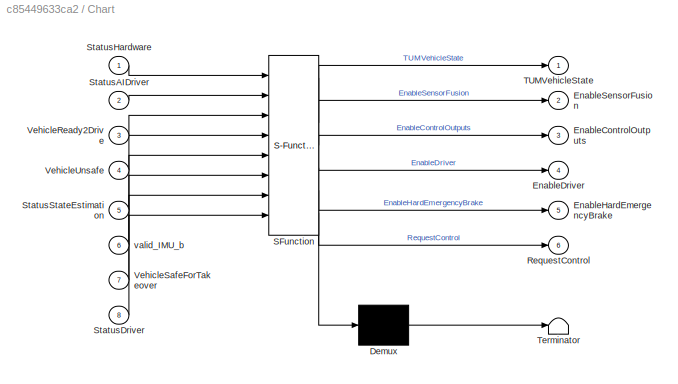
BLOCK [SubSystem] Chart
  ErrorFcn = Stateflow.Translate.translate
  PermitHierarchicalResolution = ExplicitOnly
  Ports = [8, 6]
  RequestExecContextInheritance = off
  SFBlockType = Chart
  TreatAsAtomicUnit = on
BLOCK [Demux] Chart/ Demux 
  Outputs = 1
  Ports = [1, 1]
BLOCK [S-Function] Chart/ SFunction 
  EnableBusSupport = on
  FunctionName = sf_sfun
  Parameters = P_VDC_SoftEmergencyTimeout_s
  PortCounts = [8 7]
  Ports = [8, 7]
  SFcnIsStateOwnerBlock = off
  SFunctionDeploymentMode = off
  Tag = Stateflow S-Function mloc_statemachine 3
BLOCK [Terminator] Chart/ Terminator 
BLOCK [Outport] Chart/EnableControlOutputs
  IconDisplay = Port number
  Port = 3
BLOCK [Outport] Chart/EnableDriver
  IconDisplay = Port number
  Port = 4
BLOCK [Outport] Chart/EnableHardEmergencyBrake
  IconDisplay = Port number
  Port = 5
BLOCK [Outport] Chart/EnableSensorFusion
  IconDisplay = Port number
  Port = 2
BLOCK [Outport] Chart/RequestControl
  IconDisplay = Port number
  Port = 6
BLOCK [Inport] Chart/StatusAIDriver
  IconDisplay = Port number
  Port = 2
BLOCK [Inport] Chart/StatusDriver
  IconDisplay = Port number
  Port = 8
BLOCK [Inport] Chart/StatusHardware
  IconDisplay = Port number
BLOCK [Inport] Chart/StatusStateEstimation
  IconDisplay = Port number
  Port = 5
BLOCK [Outport] Chart/TUMVehicleState
  IconDisplay = Port number
BLOCK [Inport] Chart/VehicleReady2Drive
  IconDisplay = Port number
  Port = 3
BLOCK [Inport] Chart/VehicleSafeForTakeover
  IconDisplay = Port number
  Port = 7
BLOCK [Inport] Chart/VehicleUnsafe
  IconDisplay = Port number
  Port = 4
BLOCK [Inport] Chart/valid_IMU_b
  IconDisplay = Port number
  Port = 6
BLOCK [DataTypeConversion] Data Type Conversion1
  OutDataTypeStr = uint16
  RndMeth = Floor
  SaturateOnIntegerOverflow = off
BLOCK [DataTypeConversion] Data Type Conversion15
  OutDataTypeStr = uint16
  RndMeth = Floor
  SaturateOnIntegerOverflow = off
BLOCK [DataTypeConversion] Data Type Conversion16
  OutDataTypeStr = uint16
  RndMeth = Floor
  SaturateOnIntegerOverflow = off
BLOCK [DataTypeConversion] Data Type Conversion17
  OutDataTypeStr = uint16
  RndMeth = Floor
  SaturateOnIntegerOverflow = off
BLOCK [DataTypeConversion] Data Type Conversion18
  OutDataTypeStr = boolean
  RndMeth = Floor
  SaturateOnIntegerOverflow = off
BLOCK [DataTypeConversion] Data Type Conversion19
  OutDataTypeStr = uint16
  RndMeth = Floor
  SaturateOnIntegerOverflow = off
BLOCK [DataTypeConversion] Data Type Conversion2
  OutDataTypeStr = uint16
  RndMeth = Floor
  SaturateOnIntegerOverflow = off
BLOCK [DataTypeConversion] Data Type Conversion3
  OutDataTypeStr = uint16
  RndMeth = Floor
  SaturateOnIntegerOverflow = off
BLOCK [DataTypeConversion] Data Type Conversion4
  OutDataTypeStr = uint16
  RndMeth = Floor
  SaturateOnIntegerOverflow = off
BLOCK [DataTypeConversion] Data Type Conversion5
  OutDataTypeStr = uint16
  RndMeth = Floor
  SaturateOnIntegerOverflow = off
BLOCK [DataTypeConversion] Data Type Conversion6
  OutDataTypeStr = uint16
  RndMeth = Floor
  SaturateOnIntegerOverflow = off
BLOCK [DataTypeConversion] Data Type Conversion7
  OutDataTypeStr = uint16
  RndMeth = Floor
  SaturateOnIntegerOverflow = off
BLOCK [DataTypeConversion] Data Type Conversion8
  OutDataTypeStr = uint16
  RndMeth = Floor
  SaturateOnIntegerOverflow = off
BLOCK [DataTypeConversion] Data Type Conversion9
  OutDataTypeStr = uint16
  RndMeth = Floor
  SaturateOnIntegerOverflow = off
BLOCK [Inport] DriverDiagnosis
  IconDisplay = Port number
  OutDataTypeStr = Bus: DriverDiagnosis
  Port = 3
BLOCK [Inport] StatusSystem
  IconDisplay = Port number
  OutDataTypeStr = Bus: VehicleSystemStatus
BLOCK [Outport] TUMModeControl
  BusOutputAsStruct = on
  IconDisplay = Port number
  OutDataTypeStr = Bus: TUMModeControl
  Port = 2
BLOCK [Outport] debug
  BusOutputAsStruct = on
  IconDisplay = Port number
  OutDataTypeStr = Bus: mloc_statemachine_debug
ANNOTATION (root): Author: Alexander Wischnewski (<email>) Chair of Automatic Control at TU Munich Description: Implements the vehicle state machine. It takes care of the low level vehicle interfaces (actuator and sensors) and is the main coordinator for the startup procedure and emergency behavior. Inputs: Status_System ParkBrakeApplied_b Vehicle feedback if parkbrake is applied. Hardware Hardware status (sensors, ...<+591ch>
LINE ActualStateEstimate:1 -> Bus Selector2:1
LINE Bus Creator1:1 -> debug:1
LINE Bus Creator3:1 -> TUMModeControl:1
NET Bus Selector1:1 -> Chart:4, Data Type Conversion5:1
NET Bus Selector1:2 -> Chart:7, Data Type Conversion1:1
NET Bus Selector1:3 -> Chart:8, Data Type Conversion3:1
NET Bus Selector2:1 -> Chart:5, Data Type Conversion7:1
LINE Bus Selector2:2 -> Chart:6
LINE Bus Selector:1 -> Data Type Conversion18:1
NET Bus Selector:2 -> Chart:1, Data Type Conversion8:1
NET Bus Selector:3 -> Chart:2, Data Type Conversion17:1
NET Bus Selector:4 -> Chart:3, Data Type Conversion19:1
NET Chart:1 -> Bus Creator3:1, Data Type Conversion2:1
NET Chart:2 -> Bus Creator3:2, Data Type Conversion6:1
NET Chart:3 -> Bus Creator3:3, Data Type Conversion15:1
NET Chart:4 -> Bus Creator3:4, Data Type Conversion16:1
NET Chart:5 -> Bus Creator3:5, Data Type Conversion4:1
NET Chart:6 -> Bus Creator3:6, Data Type Conversion9:1
LINE Data Type Conversion15:1 -> Bus Creator1:11
LINE Data Type Conversion16:1 -> Bus Creator1:12
LINE Data Type Conversion17:1 -> Bus Creator1:2
LINE Data Type Conversion18:1 -> Bus Creator1:3
LINE Data Type Conversion19:1 -> Bus Creator1:4
LINE Data Type Conversion1:1 -> Bus Creator1:6
LINE Data Type Conversion2:1 -> Bus Creator1:9
LINE Data Type Conversion3:1 -> Bus Creator1:7
LINE Data Type Conversion4:1 -> Bus Creator1:13
LINE Data Type Conversion5:1 -> Bus Creator1:8
LINE Data Type Conversion6:1 -> Bus Creator1:10
LINE Data Type Conversion7:1 -> Bus Creator1:5
LINE Data Type Conversion8:1 -> Bus Creator1:1
LINE Data Type Conversion9:1 -> Bus Creator1:14
LINE DriverDiagnosis:1 -> Bus Selector1:1
LINE StatusSystem:1 -> Bus Selector:1
note: NET lines group one-source signal fan-out (src -> all destinations, sorted); 1:1 wires keep LINE
CHART Chart states=16 transitions=21
  STATE_LABEL '<!DOCTYPE HTML PUBLIC "-//W3C//DTD HTML 4.0//EN" "http://www.w3.org/TR/REC-html40/strict.dtd">\n<html><head><meta name="qrichtext" content="1" /><style type="text/css">\np, li { white-space: pre-wrap; }\n</style></head><body style=" font-family:\'Helvetica\'; font-size:12px; font-weight:400; font-style:normal;">\n<p style=" margin-top:0px; margin-bottom:0px; margin-left:0px; margin-right:0px; -qt-block-...<+2846ch>'
  STATE_LABEL 'This state is used as an intermediate state\nto wait until the reset command is set \nvia the StatusHardware bit'
  STATE_LABEL 'WaitForReset'
  STATE_LABEL 'STARTUP\nentry:\nEnableDriver = false;\nEnableSensorFusion = false;\nEnableHardEmergencyBrake = false;'
  STATE_LABEL 'WaitForSystem\nentry: TUMVehicleState = ...\n     TUMVehicleState.STARTUP_WaitForSystem;\n'
  STATE_LABEL 'WaitForDriverComms\nentry: TUMVehicleState = ...\n     TUMVehicleState.STARTUP_WaitForAIDriverComms;\n'
  STATE_LABEL '[StatusHardware == OK]'
  STATE_LABEL '[StatusHardware == OK]'
  STATE_LABEL '[StatusHardware ~= OK]'
  STATE_LABEL 'WaitForSystem\nentry: TUMVehicleState = ...\n     TUMVehicleState.STARTUP_WaitForSystem;\n'
  STATE_LABEL 'WaitForDriverComms\nentry: TUMVehicleState = ...\n     TUMVehicleState.STARTUP_WaitForAIDriverComms;\n'
  STATE_LABEL 'IDLE\n'
  STATE_LABEL 'ActivateSensorFusion\nentry: TUMVehicleState = ...\n     TUMVehicleState.IDLE_WaitForSensorFusion;\n EnableSensorFusion = true;\n EnableDriver = false;'
  STATE_LABEL 'SensorFusionReady\n'
  STATE_LABEL 'ActivateDriver\nentry:\n EnableDriver = true;\n RequestControl = false;\n TUMVehicleState = ...\n     TUMVehicleState.IDLE_ActivateDriver;'
  STATE_LABEL 'WaitForVehicle\nentry: RequestControl = true;\n TUMVehicleState = ...\n     TUMVehicleState.IDLE_WaitForVehicle;'
  STATE_LABEL '[StatusDriver == TUMHealthStatus.OK]'
  STATE_LABEL '[StatusDriver ~= TUMHealthStatus.OK]'
  STATE_LABEL '[~(StatusStateEstimation == TUMHealthStatus.OK && valid_IMU_b)]'
  STATE_LABEL '[StatusStateEstimation == TUMHealthStatus.OK &&...\nvalid_IMU_b]'
  STATE_LABEL 'ActivateSensorFusion\nentry: TUMVehicleState = ...\n     TUMVehicleState.IDLE_WaitForSensorFusion;\n EnableSensorFusion = true;\n EnableDriver = false;'
  STATE_LABEL 'SensorFusionReady\n'
  STATE_LABEL 'ActivateDriver\nentry:\n EnableDriver = true;\n RequestControl = false;\n TUMVehicleState = ...\n     TUMVehicleState.IDLE_ActivateDriver;'
  STATE_LABEL 'WaitForVehicle\nentry: RequestControl = true;\n TUMVehicleState = ...\n     TUMVehicleState.IDLE_WaitForVehicle;'
  STATE_LABEL '[StatusDriver == TUMHealthStatus.OK]'
  STATE_LABEL '[StatusDriver ~= TUMHealthStatus.OK]'
  STATE_LABEL 'ActivateDriver\nentry:\n EnableDriver = true;\n RequestControl = false;\n TUMVehicleState = ...\n     TUMVehicleState.IDLE_ActivateDriver;'
  STATE_LABEL 'WaitForVehicle\nentry: RequestControl = true;\n TUMVehicleState = ...\n     TUMVehicleState.IDLE_WaitForVehicle;'
  STATE_LABEL 'ControlActive\nentry: EnableControlOutputs = true;\nexit: EnableControlOutputs = false;'
  STATE_LABEL 'NormalOperation'
  STATE_LABEL 'Driving\nentry:\nTUMVehicleState = ...\n    TUMVehicleState.DRIVING;'
  STATE_LABEL 'SoftEmergencyStop\nentry:\nTUMVehicleState = ...\n    TUMVehicleState.EMERGENCY;'
  STATE_LABEL '[~VehicleReady2Drive...\n|| StatusDriver == TUMHealthStatus.WARNING...\n|| StatusStateEstimation == TUMHealthStatus.WARNING...\n|| StatusAIDriver ~= OK...\n|| VehicleUnsafe...\n|| ~valid_IMU_b]'
  STATE_LABEL 'HardEmergencyStop\nentry:\nTUMVehicleState = ...\n    TUMVehicleState.HARDEMERGENCY;\nEnableHardEmergencyBrake = true;'
  STATE_LABEL '[StatusHardware ~= OK ||...\nStatusDriver == TUMHealthStatus.ERROR ||...\nStatusStateEstimation == TUMHealthStatus.ERROR]'
  STATE_LABEL '[after(P_VDC_SoftEmergencyTimeout_s, sec)]'
  STATE_LABEL 'NormalOperation'
  STATE_LABEL 'Driving\nentry:\nTUMVehicleState = ...\n    TUMVehicleState.DRIVING;'
  STATE_LABEL 'SoftEmergencyStop\nentry:\nTUMVehicleState = ...\n    TUMVehicleState.EMERGENCY;'
  STATE_LABEL '[~VehicleReady2Drive...\n|| StatusDriver == TUMHealthStatus.WARNING...\n|| StatusStateEstimation == TUMHealthStatus.WARNING...\n|| StatusAIDriver ~= OK...\n|| VehicleUnsafe...\n|| ~valid_IMU_b]'
